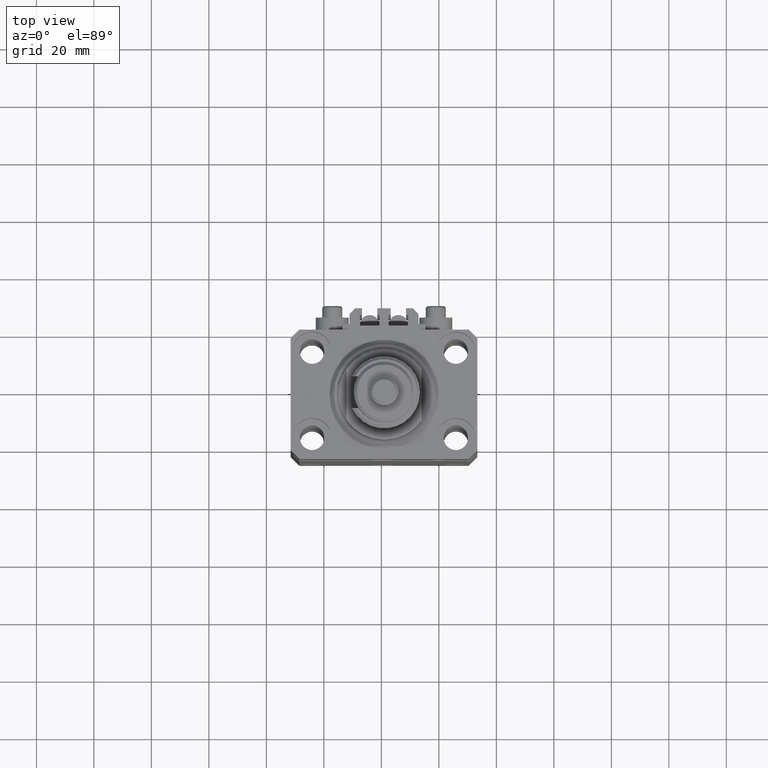
[diagram: clean part render]
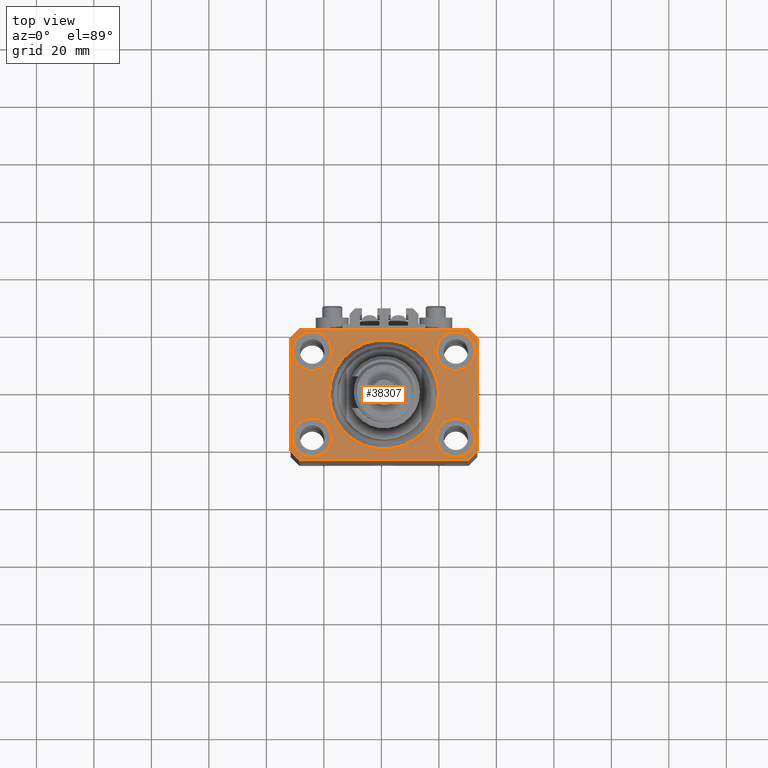
[diagram: same view with one face highlighted and labeled with its STEP entity id]
A machine part, top view. The second image highlights one B-rep face of the part: STEP entity #38307.
In plain terms, the highlighted planar face has unit normal (0, 0, 1).
Its self-contained STEP definition (entity closure, byte-faithful):
#714 = CARTESIAN_POINT ( 'NONE',  ( -25.00000000000000355, -15.00000000000000000, 0.000000000000000000 ) ) ;
#781 = ORIENTED_EDGE ( 'NONE', *, *, #17968, .F. ) ;
#1840 = CIRCLE ( 'NONE', #21949, 6.750000000041541881 ) ;
#1919 = ORIENTED_EDGE ( 'NONE', *, *, #42842, .F. ) ;
#2477 = CARTESIAN_POINT ( 'NONE',  ( 18.25000000002253842, -15.00000000000000000, 0.000000000000000000 ) ) ;
#2589 = VERTEX_POINT ( 'NONE', #27528 ) ;
#2637 = EDGE_CURVE ( 'NONE', #45712, #21075, #35657, .T. ) ;
#2690 = ORIENTED_EDGE ( 'NONE', *, *, #16318, .T. ) ;
#2692 = CIRCLE ( 'NONE', #21979, 19.00000000000000000 ) ;
#2952 = VERTEX_POINT ( 'NONE', #22102 ) ;
#3074 = EDGE_CURVE ( 'NONE', #30828, #2589, #15029, .T. ) ;
#3623 = FACE_BOUND ( 'NONE', #12873, .T. ) ;
#3725 = CARTESIAN_POINT ( 'NONE',  ( 25.00000000000000355, -15.00000000000000000, 0.000000000000000000 ) ) ;
#4473 = CIRCLE ( 'NONE', #33799, 19.00000000000000000 ) ;
#5253 = EDGE_CURVE ( 'NONE', #43779, #45712, #16835, .T. ) ;
#5395 = CARTESIAN_POINT ( 'NONE',  ( -32.49999999999650413, 19.49999999999949907, 0.000000000000000000 ) ) ;
#5702 = CARTESIAN_POINT ( 'NONE',  ( -29.49999999999650413, -22.49999999999949907, 0.000000000000000000 ) ) ;
#7010 = EDGE_CURVE ( 'NONE', #41723, #16556, #29010, .T. ) ;
#7130 = DIRECTION ( 'NONE',  ( 1.000000000000000000, 0.000000000000000000, 0.000000000000000000 ) ) ;
#7293 = FACE_BOUND ( 'NONE', #10910, .T. ) ;
#7309 = LINE ( 'NONE', #12019, #24640 ) ;
#7380 = CARTESIAN_POINT ( 'NONE',  ( -31.75000000002253842, 15.00000000000000000, 0.000000000000000000 ) ) ;
#7770 = DIRECTION ( 'NONE',  ( -0.7071067811865352493, 0.7071067811865597852, 0.000000000000000000 ) ) ;
#8383 = VERTEX_POINT ( 'NONE', #41977 ) ;
#8678 = EDGE_LOOP ( 'NONE', ( #19808, #40051 ) ) ;
#8774 = AXIS2_PLACEMENT_3D ( 'NONE', #28845, #50090, #17283 ) ;
#9740 = CARTESIAN_POINT ( 'NONE',  ( 18.25000000004154543, 15.00000000000000888, 0.000000000000000000 ) ) ;
#9949 = CARTESIAN_POINT ( 'NONE',  ( 19.00000000000000000, 0.000000000000000000, 0.000000000000000000 ) ) ;
#10429 = DIRECTION ( 'NONE',  ( 0.000000000000000000, 0.000000000000000000, 1.000000000000000000 ) ) ;
#10910 = EDGE_LOOP ( 'NONE', ( #29739, #30522 ) ) ;
#10933 = ORIENTED_EDGE ( 'NONE', *, *, #3074, .F. ) ;
#10971 = PLANE ( 'NONE',  #22167 ) ;
#11326 = EDGE_CURVE ( 'NONE', #31083, #21677, #4473, .T. ) ;
#11577 = EDGE_CURVE ( 'NONE', #2589, #30828, #48050, .T. ) ;
#11745 = DIRECTION ( 'NONE',  ( 0.000000000000000000, 0.000000000000000000, 1.000000000000000000 ) ) ;
#12019 = CARTESIAN_POINT ( 'NONE',  ( 29.49999999999707967, 22.49999999999951328, 0.000000000000000000 ) ) ;
#12265 = DIRECTION ( 'NONE',  ( -1.000000000000000000, -2.352167425053553784E-16, 0.000000000000000000 ) ) ;
#12533 = VERTEX_POINT ( 'NONE', #30121 ) ;
#12553 = DIRECTION ( 'NONE',  ( 1.000000000000000000, 0.000000000000000000, 0.000000000000000000 ) ) ;
#12873 = EDGE_LOOP ( 'NONE', ( #1919, #781 ) ) ;
#13602 = CARTESIAN_POINT ( 'NONE',  ( 0.000000000000000000, 0.000000000000000000, 0.000000000000000000 ) ) ;
#13892 = CARTESIAN_POINT ( 'NONE',  ( 0.000000000000000000, 0.000000000000000000, 0.000000000000000000 ) ) ;
#14488 = VERTEX_POINT ( 'NONE', #37618 ) ;
#14805 = VERTEX_POINT ( 'NONE', #9740 ) ;
#15029 = CIRCLE ( 'NONE', #22558, 6.749999999977465137 ) ;
#15120 = CARTESIAN_POINT ( 'NONE',  ( 32.49999999999702993, 19.49999999999945999, 0.000000000000000000 ) ) ;
#15140 = VECTOR ( 'NONE', #16577, 1000.000000000000114 ) ;
#15585 = ORIENTED_EDGE ( 'NONE', *, *, #5253, .T. ) ;
#15704 = CIRCLE ( 'NONE', #23265, 6.749999999958452790 ) ;
#15886 = CARTESIAN_POINT ( 'NONE',  ( 24.99999999999999645, 15.00000000000000888, 0.000000000000000000 ) ) ;
#15923 = FACE_BOUND ( 'NONE', #8678, .T. ) ;
#15949 = LINE ( 'NONE', #40095, #46646 ) ;
#16205 = AXIS2_PLACEMENT_3D ( 'NONE', #51043, #27161, #50528 ) ;
#16207 = DIRECTION ( 'NONE',  ( 1.000000000000000000, 1.176083712526788232E-16, 0.000000000000000000 ) ) ;
#16318 = EDGE_CURVE ( 'NONE', #8383, #43779, #7309, .T. ) ;
#16473 = CARTESIAN_POINT ( 'NONE',  ( -32.49999999999650413, 19.49999999999949907, 0.000000000000000000 ) ) ;
#16481 = DIRECTION ( 'NONE',  ( 0.000000000000000000, 0.000000000000000000, 1.000000000000000000 ) ) ;
#16556 = VERTEX_POINT ( 'NONE', #46599 ) ;
#16577 = DIRECTION ( 'NONE',  ( -0.7071067811865474617, -0.7071067811865474617, 0.000000000000000000 ) ) ;
#16715 = VECTOR ( 'NONE', #32495, 1000.000000000000000 ) ;
#16835 = LINE ( 'NONE', #44122, #15140 ) ;
#17005 = ORIENTED_EDGE ( 'NONE', *, *, #42546, .T. ) ;
#17283 = DIRECTION ( 'NONE',  ( 1.000000000000000000, 0.000000000000000000, 0.000000000000000000 ) ) ;
#17356 = VECTOR ( 'NONE', #26743, 1000.000000000000000 ) ;
#17892 = LINE ( 'NONE', #31201, #17356 ) ;
#17968 = EDGE_CURVE ( 'NONE', #42244, #12533, #46479, .T. ) ;
#18236 = VERTEX_POINT ( 'NONE', #5702 ) ;
#19591 = ORIENTED_EDGE ( 'NONE', *, *, #2637, .T. ) ;
#19808 = ORIENTED_EDGE ( 'NONE', *, *, #30431, .F. ) ;
#20311 = EDGE_CURVE ( 'NONE', #21075, #18236, #21984, .T. ) ;
#20891 = DIRECTION ( 'NONE',  ( 0.000000000000000000, 0.000000000000000000, 1.000000000000000000 ) ) ;
#21075 = VERTEX_POINT ( 'NONE', #37745 ) ;
#21262 = CIRCLE ( 'NONE', #16205, 6.750000000041541881 ) ;
#21468 = DIRECTION ( 'NONE',  ( 0.7071067811865474617, -0.7071067811865474617, 0.000000000000000000 ) ) ;
#21677 = VERTEX_POINT ( 'NONE', #9949 ) ;
#21949 = AXIS2_PLACEMENT_3D ( 'NONE', #714, #20891, #40571 ) ;
#21979 = AXIS2_PLACEMENT_3D ( 'NONE', #13602, #29106, #41421 ) ;
#21984 = LINE ( 'NONE', #49280, #45772 ) ;
#22070 = AXIS2_PLACEMENT_3D ( 'NONE', #27785, #16481, #12553 ) ;
#22102 = CARTESIAN_POINT ( 'NONE',  ( -18.24999999995846167, -15.00000000000000000, 0.000000000000000000 ) ) ;
#22167 = AXIS2_PLACEMENT_3D ( 'NONE', #35620, #11745, #26965 ) ;
#22558 = AXIS2_PLACEMENT_3D ( 'NONE', #3725, #27064, #7130 ) ;
#22779 = CARTESIAN_POINT ( 'NONE',  ( 29.49999999999650413, -22.49999999999949196, 0.000000000000000000 ) ) ;
#23237 = CIRCLE ( 'NONE', #38342, 6.749999999958452790 ) ;
#23265 = AXIS2_PLACEMENT_3D ( 'NONE', #41371, #24325, #40856 ) ;
#23545 = FACE_BOUND ( 'NONE', #44696, .T. ) ;
#24325 = DIRECTION ( 'NONE',  ( 0.000000000000000000, 0.000000000000000000, 1.000000000000000000 ) ) ;
#24640 = VECTOR ( 'NONE', #12265, 1000.000000000000000 ) ;
#24764 = CARTESIAN_POINT ( 'NONE',  ( 32.49999999999702993, 19.49999999999945999, 0.000000000000000000 ) ) ;
#25978 = DIRECTION ( 'NONE',  ( 1.000000000000000000, 0.000000000000000000, 0.000000000000000000 ) ) ;
#26214 = CARTESIAN_POINT ( 'NONE',  ( -31.75000000004154899, -15.00000000000000000, 0.000000000000000000 ) ) ;
#26743 = DIRECTION ( 'NONE',  ( 1.334402673828349134E-14, 1.000000000000000000, 0.000000000000000000 ) ) ;
#26931 = LINE ( 'NONE', #15120, #49438 ) ;
#26965 = DIRECTION ( 'NONE',  ( 1.000000000000000000, 0.000000000000000000, -0.000000000000000000 ) ) ;
#27064 = DIRECTION ( 'NONE',  ( 0.000000000000000000, 0.000000000000000000, 1.000000000000000000 ) ) ;
#27161 = DIRECTION ( 'NONE',  ( 0.000000000000000000, 0.000000000000000000, 1.000000000000000000 ) ) ;
#27528 = CARTESIAN_POINT ( 'NONE',  ( 31.74999999997746869, -15.00000000000000000, 0.000000000000000000 ) ) ;
#27785 = CARTESIAN_POINT ( 'NONE',  ( 25.00000000000000355, -15.00000000000000000, 0.000000000000000000 ) ) ;
#28845 = CARTESIAN_POINT ( 'NONE',  ( -25.00000000000000355, 15.00000000000000000, 0.000000000000000000 ) ) ;
#29010 = LINE ( 'NONE', #44478, #39493 ) ;
#29106 = DIRECTION ( 'NONE',  ( 0.000000000000000000, 0.000000000000000000, 1.000000000000000000 ) ) ;
#29194 = DIRECTION ( 'NONE',  ( 0.000000000000000000, 0.000000000000000000, 1.000000000000000000 ) ) ;
#29302 = EDGE_CURVE ( 'NONE', #41732, #2952, #1840, .T. ) ;
#29675 = ORIENTED_EDGE ( 'NONE', *, *, #29302, .F. ) ;
#29678 = ORIENTED_EDGE ( 'NONE', *, *, #20311, .T. ) ;
#29739 = ORIENTED_EDGE ( 'NONE', *, *, #51913, .F. ) ;
#29911 = DIRECTION ( 'NONE',  ( 0.000000000000000000, 0.000000000000000000, 1.000000000000000000 ) ) ;
#30121 = CARTESIAN_POINT ( 'NONE',  ( -18.24999999997747224, 15.00000000000000000, 0.000000000000000000 ) ) ;
#30431 = EDGE_CURVE ( 'NONE', #21677, #31083, #2692, .T. ) ;
#30522 = ORIENTED_EDGE ( 'NONE', *, *, #47196, .F. ) ;
#30622 = CARTESIAN_POINT ( 'NONE',  ( -25.00000000000000355, 15.00000000000000000, 0.000000000000000000 ) ) ;
#30828 = VERTEX_POINT ( 'NONE', #2477 ) ;
#31083 = VERTEX_POINT ( 'NONE', #50407 ) ;
#31201 = CARTESIAN_POINT ( 'NONE',  ( 32.49999999999651124, -19.49999999999949196, 0.000000000000000000 ) ) ;
#31582 = ORIENTED_EDGE ( 'NONE', *, *, #7010, .T. ) ;
#32049 = ORIENTED_EDGE ( 'NONE', *, *, #50370, .T. ) ;
#32495 = DIRECTION ( 'NONE',  ( 0.000000000000000000, -1.000000000000000000, 0.000000000000000000 ) ) ;
#32837 = EDGE_CURVE ( 'NONE', #2952, #41732, #21262, .T. ) ;
#33096 = VERTEX_POINT ( 'NONE', #24764 ) ;
#33799 = AXIS2_PLACEMENT_3D ( 'NONE', #13892, #29911, #25978 ) ;
#34850 = FACE_BOUND ( 'NONE', #40111, .T. ) ;
#34900 = CIRCLE ( 'NONE', #39084, 6.750000000022533087 ) ;
#35620 = CARTESIAN_POINT ( 'NONE',  ( 0.000000000000000000, 0.000000000000000000, 0.000000000000000000 ) ) ;
#35657 = LINE ( 'NONE', #16473, #16715 ) ;
#37618 = CARTESIAN_POINT ( 'NONE',  ( 31.74999999995845101, 15.00000000000000888, 0.000000000000000000 ) ) ;
#37745 = CARTESIAN_POINT ( 'NONE',  ( -32.49999999999650413, -19.49999999999949907, 0.000000000000000000 ) ) ;
#38191 = ORIENTED_EDGE ( 'NONE', *, *, #43481, .T. ) ;
#38307 = ADVANCED_FACE ( 'NONE', ( #23545, #34850, #7293, #3623, #15923, #47687 ), #10971, .T. ) ;
#38342 = AXIS2_PLACEMENT_3D ( 'NONE', #15886, #29194, #51587 ) ;
#39084 = AXIS2_PLACEMENT_3D ( 'NONE', #30622, #10429, #51072 ) ;
#39493 = VECTOR ( 'NONE', #41324, 1000.000000000000000 ) ;
#40051 = ORIENTED_EDGE ( 'NONE', *, *, #11326, .F. ) ;
#40095 = CARTESIAN_POINT ( 'NONE',  ( -29.49999999999650413, -22.49999999999949907, 0.000000000000000000 ) ) ;
#40111 = EDGE_LOOP ( 'NONE', ( #41601, #10933 ) ) ;
#40571 = DIRECTION ( 'NONE',  ( 1.000000000000000000, 0.000000000000000000, 0.000000000000000000 ) ) ;
#40856 = DIRECTION ( 'NONE',  ( 1.000000000000000000, 0.000000000000000000, 0.000000000000000000 ) ) ;
#41324 = DIRECTION ( 'NONE',  ( 0.7071067811865483499, 0.7071067811865466846, 0.000000000000000000 ) ) ;
#41371 = CARTESIAN_POINT ( 'NONE',  ( 24.99999999999999645, 15.00000000000000888, 0.000000000000000000 ) ) ;
#41421 = DIRECTION ( 'NONE',  ( 1.000000000000000000, 0.000000000000000000, 0.000000000000000000 ) ) ;
#41601 = ORIENTED_EDGE ( 'NONE', *, *, #11577, .F. ) ;
#41723 = VERTEX_POINT ( 'NONE', #22779 ) ;
#41732 = VERTEX_POINT ( 'NONE', #26214 ) ;
#41977 = CARTESIAN_POINT ( 'NONE',  ( 29.49999999999707967, 22.49999999999951328, 0.000000000000000000 ) ) ;
#42244 = VERTEX_POINT ( 'NONE', #7380 ) ;
#42546 = EDGE_CURVE ( 'NONE', #18236, #41723, #15949, .T. ) ;
#42842 = EDGE_CURVE ( 'NONE', #12533, #42244, #34900, .T. ) ;
#43481 = EDGE_CURVE ( 'NONE', #16556, #33096, #17892, .T. ) ;
#43779 = VERTEX_POINT ( 'NONE', #48313 ) ;
#44122 = CARTESIAN_POINT ( 'NONE',  ( -29.49999999999650413, 22.49999999999949907, 0.000000000000000000 ) ) ;
#44142 = EDGE_LOOP ( 'NONE', ( #2690, #15585, #19591, #29678, #17005, #31582, #38191, #32049 ) ) ;
#44478 = CARTESIAN_POINT ( 'NONE',  ( 29.49999999999650413, -22.49999999999949196, 0.000000000000000000 ) ) ;
#44696 = EDGE_LOOP ( 'NONE', ( #47484, #29675 ) ) ;
#45712 = VERTEX_POINT ( 'NONE', #5395 ) ;
#45772 = VECTOR ( 'NONE', #21468, 1000.000000000000114 ) ;
#46479 = CIRCLE ( 'NONE', #8774, 6.750000000022533087 ) ;
#46599 = CARTESIAN_POINT ( 'NONE',  ( 32.49999999999651124, -19.49999999999949196, 0.000000000000000000 ) ) ;
#46646 = VECTOR ( 'NONE', #16207, 1000.000000000000000 ) ;
#47196 = EDGE_CURVE ( 'NONE', #14805, #14488, #23237, .T. ) ;
#47484 = ORIENTED_EDGE ( 'NONE', *, *, #32837, .F. ) ;
#47687 = FACE_OUTER_BOUND ( 'NONE', #44142, .T. ) ;
#48050 = CIRCLE ( 'NONE', #22070, 6.749999999977465137 ) ;
#48313 = CARTESIAN_POINT ( 'NONE',  ( -29.49999999999650413, 22.49999999999949907, 0.000000000000000000 ) ) ;
#49280 = CARTESIAN_POINT ( 'NONE',  ( -32.49999999999650413, -19.49999999999949907, 0.000000000000000000 ) ) ;
#49438 = VECTOR ( 'NONE', #7770, 1000.000000000000000 ) ;
#50090 = DIRECTION ( 'NONE',  ( 0.000000000000000000, 0.000000000000000000, 1.000000000000000000 ) ) ;
#50370 = EDGE_CURVE ( 'NONE', #33096, #8383, #26931, .T. ) ;
#50407 = CARTESIAN_POINT ( 'NONE',  ( -19.00000000000000000, 2.326828918379970970E-15, 0.000000000000000000 ) ) ;
#50528 = DIRECTION ( 'NONE',  ( 1.000000000000000000, 0.000000000000000000, 0.000000000000000000 ) ) ;
#51043 = CARTESIAN_POINT ( 'NONE',  ( -25.00000000000000355, -15.00000000000000000, 0.000000000000000000 ) ) ;
#51072 = DIRECTION ( 'NONE',  ( 1.000000000000000000, 0.000000000000000000, 0.000000000000000000 ) ) ;
#51587 = DIRECTION ( 'NONE',  ( 1.000000000000000000, 0.000000000000000000, 0.000000000000000000 ) ) ;
#51913 = EDGE_CURVE ( 'NONE', #14488, #14805, #15704, .T. ) ;